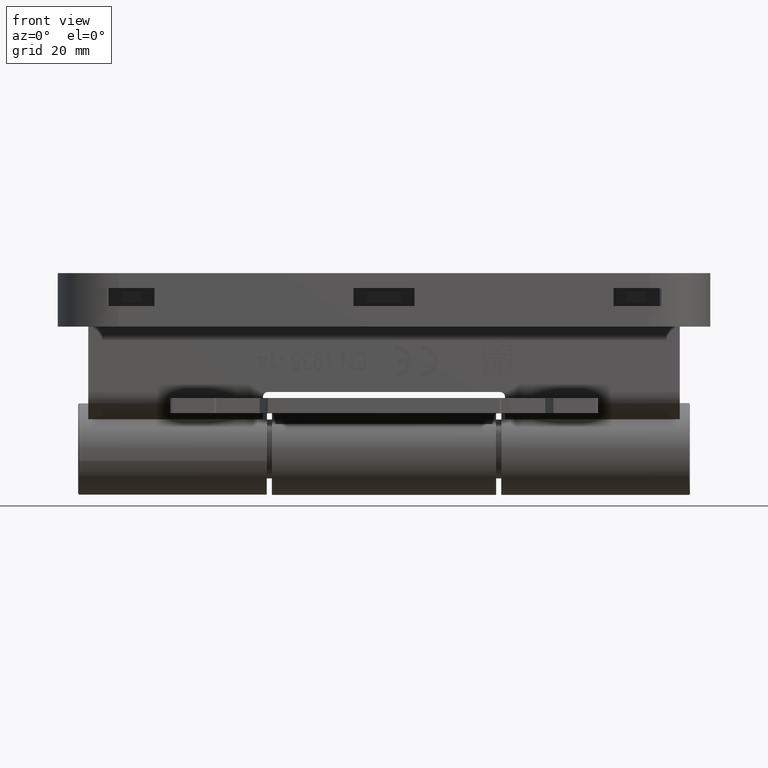
[diagram: clean part render]
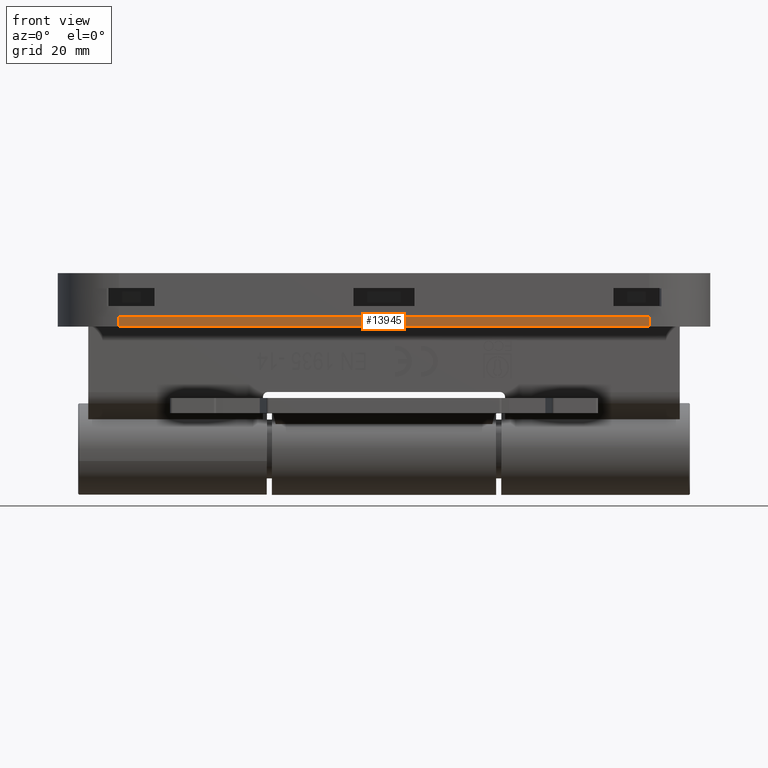
[diagram: same view with one face highlighted and labeled with its STEP entity id]
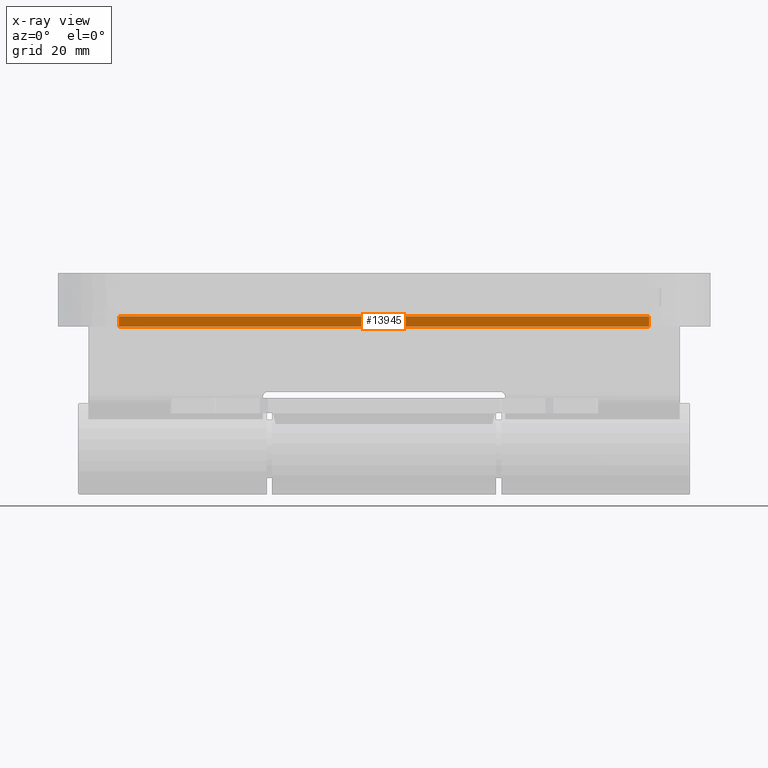
[diagram: x-ray of the same camera — body ghosted, the highlighted face saturated]
A machine part, front view. The second image highlights one B-rep face of the part: STEP entity #13945.
The next image is the same camera in x-ray: the body ghosted, the highlighted face saturated — about 0% of this face is hidden behind the body in this view.
In plain terms, the highlighted planar face has unit normal (0, 1, 0).
Its self-contained STEP definition (entity closure, byte-faithful):
#1655 = DIRECTION ( 'NONE',  ( -7.801111218853754580E-16, -1.000000000000000000, 5.215223172159257832E-16 ) ) ;
#2005 = EDGE_CURVE ( 'NONE', #12175, #36388, #49436, .T. ) ;
#6238 = EDGE_CURVE ( 'NONE', #8459, #21720, #50679, .T. ) ;
#7295 = AXIS2_PLACEMENT_3D ( 'NONE', #24697, #33018, #37160 ) ;
#7564 = DIRECTION ( 'NONE',  ( -7.801111218853754580E-16, -1.000000000000000000, 5.215223172159257832E-16 ) ) ;
#8459 = VERTEX_POINT ( 'NONE', #45761 ) ;
#10495 = DIRECTION ( 'NONE',  ( 2.220446049250395911E-16, 5.215223172159268679E-16, -1.000000000000000000 ) ) ;
#10752 = LINE ( 'NONE', #42704, #15743 ) ;
#12175 = VERTEX_POINT ( 'NONE', #31015 ) ;
#13945 = ADVANCED_FACE ( 'NONE', ( #33520 ), #14029, .F. ) ;
#13994 = EDGE_LOOP ( 'NONE', ( #45746, #20719, #34560, #32355 ) ) ;
#14029 = PLANE ( 'NONE',  #7295 ) ;
#15743 = VECTOR ( 'NONE', #10495, 1000.000000000000000 ) ;
#17619 = LINE ( 'NONE', #21526, #48454 ) ;
#19523 = CARTESIAN_POINT ( 'NONE',  ( -11.50000000000003375, -52.00000000000027711, 4.163336342344337027E-14 ) ) ;
#20719 = ORIENTED_EDGE ( 'NONE', *, *, #46539, .F. ) ;
#21526 = CARTESIAN_POINT ( 'NONE',  ( -11.50000000000002842, -52.00000000000027001, 2.000000000000043521 ) ) ;
#21720 = VERTEX_POINT ( 'NONE', #32956 ) ;
#22448 = CARTESIAN_POINT ( 'NONE',  ( -11.50000000000002842, -52.00000000000027001, 2.000000000000043521 ) ) ;
#24697 = CARTESIAN_POINT ( 'NONE',  ( -11.50000000000002842, -52.00000000000027001, 2.000000000000043521 ) ) ;
#26386 = VECTOR ( 'NONE', #7564, 1000.000000000000000 ) ;
#31015 = CARTESIAN_POINT ( 'NONE',  ( -11.49999999999997158, 52.00000000000018474, 1.999999999999975797 ) ) ;
#32355 = ORIENTED_EDGE ( 'NONE', *, *, #38864, .T. ) ;
#32956 = CARTESIAN_POINT ( 'NONE',  ( -11.50000000000003375, -52.00000000000027711, 4.163336342344337027E-14 ) ) ;
#33018 = DIRECTION ( 'NONE',  ( 1.000000000000000000, 7.801111218853758524E-16, 2.220446049250399856E-16 ) ) ;
#33520 = FACE_OUTER_BOUND ( 'NONE', #13994, .T. ) ;
#34560 = ORIENTED_EDGE ( 'NONE', *, *, #2005, .F. ) ;
#36388 = VERTEX_POINT ( 'NONE', #41668 ) ;
#36898 = VECTOR ( 'NONE', #1655, 1000.000000000000000 ) ;
#37160 = DIRECTION ( 'NONE',  ( 2.220446049250395911E-16, 5.215223172159268679E-16, -1.000000000000000000 ) ) ;
#38864 = EDGE_CURVE ( 'NONE', #12175, #8459, #10752, .T. ) ;
#41668 = CARTESIAN_POINT ( 'NONE',  ( -11.50000000000002842, -52.00000000000027001, 2.000000000000043521 ) ) ;
#42704 = CARTESIAN_POINT ( 'NONE',  ( -11.49999999999997158, 52.00000000000018474, 1.999999999999975797 ) ) ;
#45746 = ORIENTED_EDGE ( 'NONE', *, *, #6238, .T. ) ;
#45761 = CARTESIAN_POINT ( 'NONE',  ( -11.49999999999996447, 52.00000000000017764, -2.428612866367529932E-14 ) ) ;
#46539 = EDGE_CURVE ( 'NONE', #36388, #21720, #17619, .T. ) ;
#48454 = VECTOR ( 'NONE', #49287, 1000.000000000000000 ) ;
#49287 = DIRECTION ( 'NONE',  ( 2.220446049250395911E-16, 5.215223172159268679E-16, -1.000000000000000000 ) ) ;
#49436 = LINE ( 'NONE', #22448, #36898 ) ;
#50679 = LINE ( 'NONE', #19523, #26386 ) ;